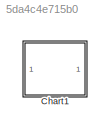
MODEL slx_5da4c4e715b0
KIND model
CONFIG AbsTol = auto
CONFIG EnableMultiTasking = off
CONFIG FixedStep = auto
CONFIG MaxStep = auto
CONFIG MinStep = auto
CONFIG RelTol = 1e-3
CONFIG SampleTimeConstraint = Unconstrained
CONFIG Solver = VariableStepAuto
CONFIG SolverName = VariableStepAuto
CONFIG StartTime = 0.0
CONFIG StopTime = 0.1
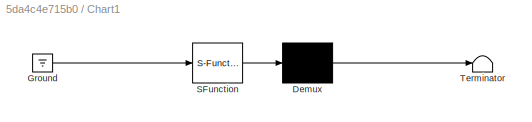
BLOCK [SubSystem] Chart1
  ErrorFcn = Stateflow.Translate.translate
  PermitHierarchicalResolution = ExplicitOnly
  Ports = []
  RequestExecContextInheritance = off
  SFBlockType = Chart
  TreatAsAtomicUnit = on
BLOCK [Demux] Chart1/ Demux 
  Outputs = 1
  Ports = [1, 1]
BLOCK [Ground] Chart1/ Ground 
BLOCK [S-Function] Chart1/ SFunction 
  EnableBusSupport = on
  FunctionName = sf_sfun
  PortCounts = [1 1]
  Ports = [1, 1]
  SFcnIsStateOwnerBlock = off
  SFunctionDeploymentMode = off
  Tag = Stateflow S-Function DirectedEvent6_2018a 1
BLOCK [Terminator] Chart1/ Terminator 
CHART Chart1 states=5 transitions=5
  STATE_LABEL 'A'
  STATE_LABEL 'B\n'
  STATE_LABEL 'C\n'
  STATE_LABEL 'C1'
  STATE_LABEL 'C2'
  STATE_LABEL 'F{fprintf("d")}'
  STATE_LABEL 'C1'
  STATE_LABEL 'C2'
